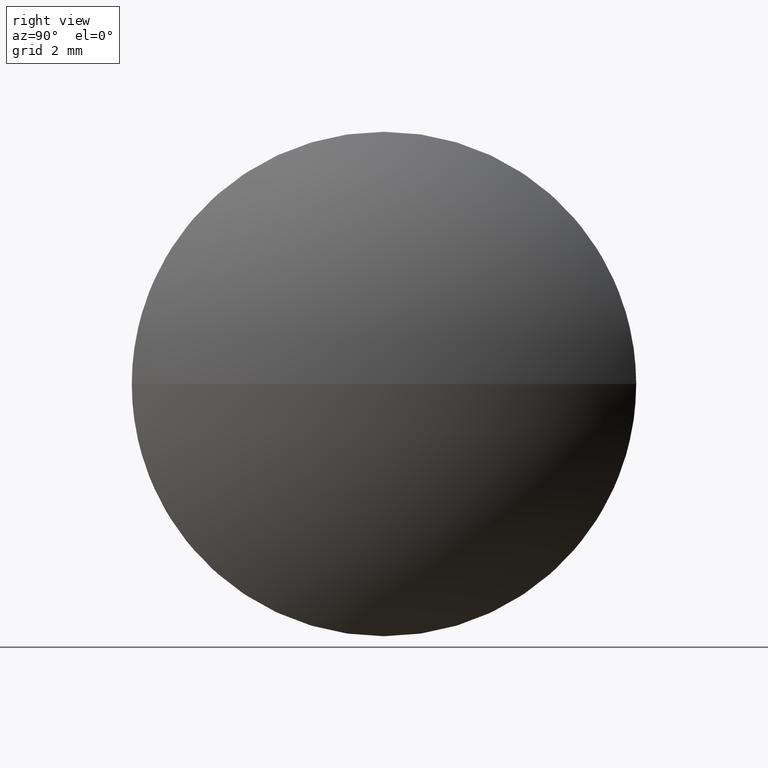
[diagram: clean part render]
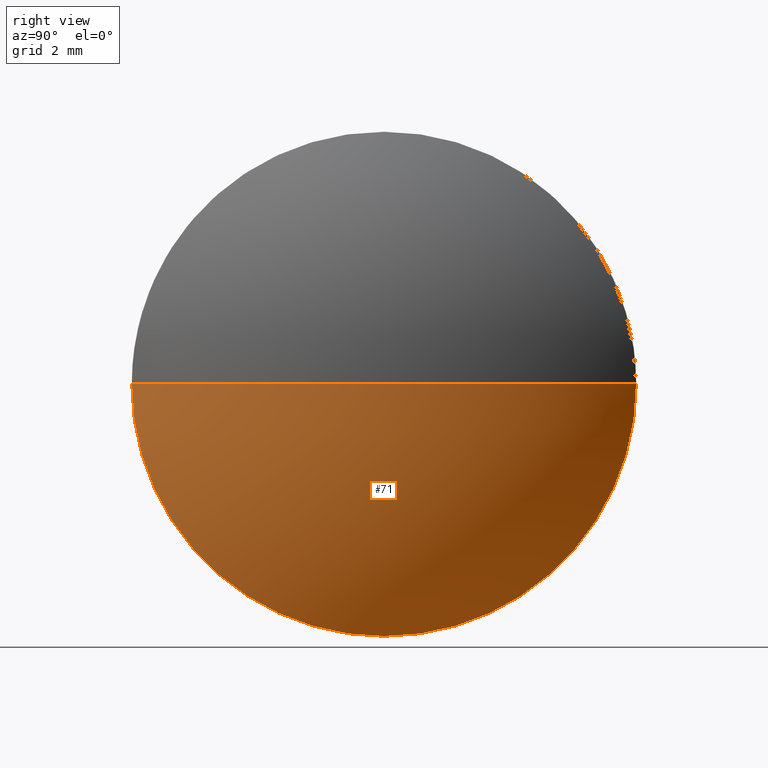
[diagram: same view with one face highlighted and labeled with its STEP entity id]
A machine part, right view. The second image highlights one B-rep face of the part: STEP entity #71.
In plain terms, the highlighted spherical surface has radius 8.2805 mm.
Its self-contained STEP definition (entity closure, byte-faithful):
#2 = ORIENTED_EDGE ( 'NONE', *, *, #127, .F. ) ;
#21 = CARTESIAN_POINT ( 'NONE',  ( 555.2279394579384200, 141.7847069453768000, -6.123233995736770200E-016 ) ) ;
#29 = AXIS2_PLACEMENT_3D ( 'NONE', #146, #64, #66 ) ;
#36 = VERTEX_POINT ( 'NONE', #82 ) ;
#38 = DIRECTION ( 'NONE',  ( 0.0000000000000000000, 1.224646799147353200E-016, -1.000000000000000000 ) ) ;
#41 = EDGE_CURVE ( 'NONE', #176, #134, #59, .T. ) ;
#43 = EDGE_LOOP ( 'NONE', ( #2, #154, #97, #100 ) ) ;
#49 = CIRCLE ( 'NONE', #55, 5.000000000000004400 ) ;
#54 = DIRECTION ( 'NONE',  ( 0.0000000000000000000, 1.000000000000000000, 0.0000000000000000000 ) ) ;
#55 = AXIS2_PLACEMENT_3D ( 'NONE', #129, #102, #120 ) ;
#59 = CIRCLE ( 'NONE', #29, 5.000000000000004400 ) ;
#62 = SPHERICAL_SURFACE ( 'NONE', #108, 8.280476190476118600 ) ;
#63 = CARTESIAN_POINT ( 'NONE',  ( 548.6274632674624200, 146.7847069453768000, 0.0000000000000000000 ) ) ;
#64 = DIRECTION ( 'NONE',  ( -1.000000000000000000, -0.0000000000000000000, -0.0000000000000000000 ) ) ;
#66 = DIRECTION ( 'NONE',  ( 0.0000000000000000000, 0.0000000000000000000, 1.000000000000000000 ) ) ;
#71 = ADVANCED_FACE ( 'NONE', ( #133 ), #62, .T. ) ;
#80 = DIRECTION ( 'NONE',  ( 0.0000000000000000000, 1.000000000000000000, 1.224646799147353900E-016 ) ) ;
#81 = CIRCLE ( 'NONE', #162, 8.280476190476115100 ) ;
#82 = CARTESIAN_POINT ( 'NONE',  ( 556.9079394579384800, 146.7847069453768000, 0.0000000000000000000 ) ) ;
#89 = CIRCLE ( 'NONE', #116, 8.280476190476115100 ) ;
#92 = CARTESIAN_POINT ( 'NONE',  ( 555.2279394579384200, 151.7847069453768000, 0.0000000000000000000 ) ) ;
#94 = CARTESIAN_POINT ( 'NONE',  ( 548.6274632674624200, 146.7847069453768000, 0.0000000000000000000 ) ) ;
#97 = ORIENTED_EDGE ( 'NONE', *, *, #173, .F. ) ;
#100 = ORIENTED_EDGE ( 'NONE', *, *, #41, .F. ) ;
#102 = DIRECTION ( 'NONE',  ( -1.000000000000000000, -0.0000000000000000000, -0.0000000000000000000 ) ) ;
#103 = VERTEX_POINT ( 'NONE', #21 ) ;
#108 = AXIS2_PLACEMENT_3D ( 'NONE', #94, #109, #54 ) ;
#109 = DIRECTION ( 'NONE',  ( -0.0000000000000000000, 0.0000000000000000000, -1.000000000000000000 ) ) ;
#116 = AXIS2_PLACEMENT_3D ( 'NONE', #167, #183, #180 ) ;
#120 = DIRECTION ( 'NONE',  ( 0.0000000000000000000, 0.0000000000000000000, 1.000000000000000000 ) ) ;
#127 = EDGE_CURVE ( 'NONE', #36, #176, #89, .T. ) ;
#129 = CARTESIAN_POINT ( 'NONE',  ( 555.2279394579384200, 146.7847069453768000, 0.0000000000000000000 ) ) ;
#133 = FACE_OUTER_BOUND ( 'NONE', #43, .T. ) ;
#134 = VERTEX_POINT ( 'NONE', #163 ) ;
#146 = CARTESIAN_POINT ( 'NONE',  ( 555.2279394579384200, 146.7847069453768000, 0.0000000000000000000 ) ) ;
#154 = ORIENTED_EDGE ( 'NONE', *, *, #161, .T. ) ;
#161 = EDGE_CURVE ( 'NONE', #36, #103, #81, .T. ) ;
#162 = AXIS2_PLACEMENT_3D ( 'NONE', #63, #38, #80 ) ;
#163 = CARTESIAN_POINT ( 'NONE',  ( 555.2279394579384200, 146.7847069453768000, -5.000000000000004400 ) ) ;
#167 = CARTESIAN_POINT ( 'NONE',  ( 548.6274632674624200, 146.7847069453768000, 0.0000000000000000000 ) ) ;
#173 = EDGE_CURVE ( 'NONE', #134, #103, #49, .T. ) ;
#176 = VERTEX_POINT ( 'NONE', #92 ) ;
#180 = DIRECTION ( 'NONE',  ( 1.000000000000000000, 0.0000000000000000000, 0.0000000000000000000 ) ) ;
#183 = DIRECTION ( 'NONE',  ( -0.0000000000000000000, 0.0000000000000000000, 1.000000000000000000 ) ) ;